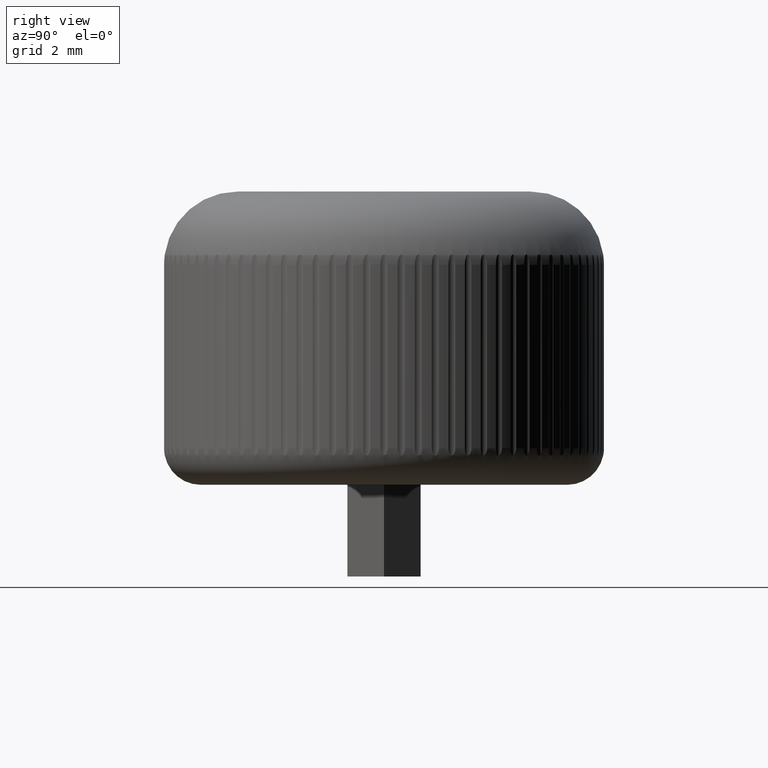
[diagram: clean part render]
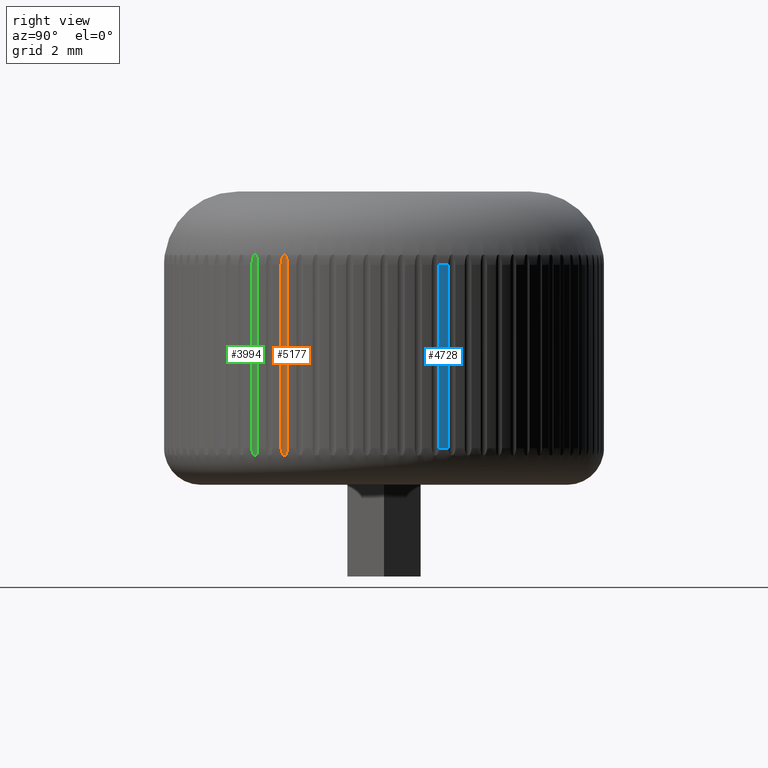
[diagram: same view with three faces highlighted in distinct colors, each labeled with its STEP entity id]
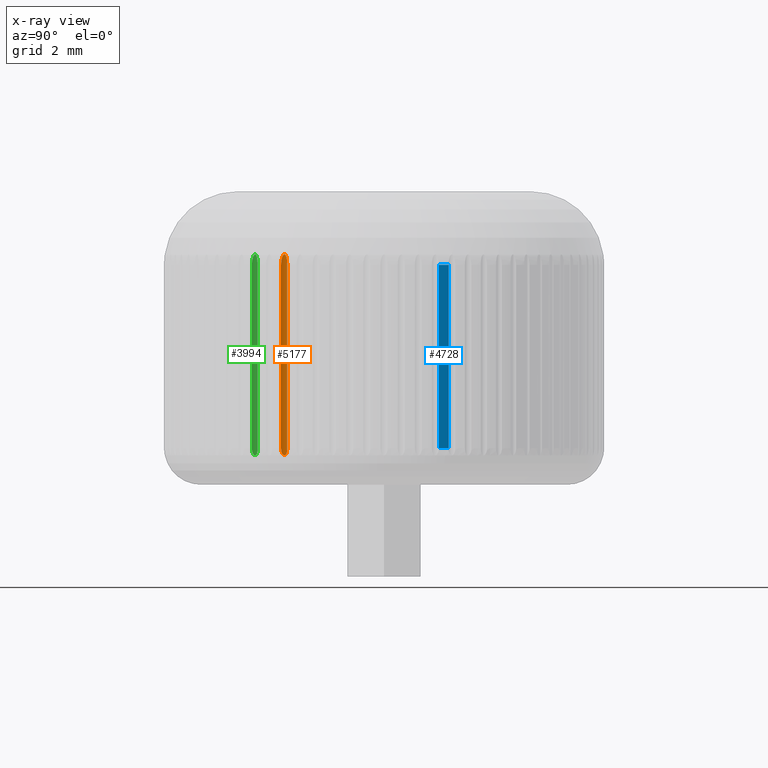
[diagram: x-ray of the same camera — body ghosted, the three highlighted faces saturated]
A machine part, right view with three faces highlighted in distinct colors.
The next image is the same camera in x-ray (body ghosted, the three faces saturated) — at least one of them is partly hidden behind the body in this view.
Their STEP definitions:

[orange] entity #5177 — the highlighted cylindrical surface (edge-blend (fillet) strip) has radius 0.25 mm, axis along (0, 0, 1).
#98 = CARTESIAN_POINT ( 'NONE',  ( 5.301701068032518700, -2.809264278280499300, 1.000000000000000000 ) ) ;
#196 = VECTOR ( 'NONE', #7091, 1000.000000000000000 ) ;
#228 = CARTESIAN_POINT ( 'NONE',  ( 5.305583289753585100, -2.779100178224980200, 6.207378750271915100 ) ) ;
#394 = CARTESIAN_POINT ( 'NONE',  ( 5.351127505341222200, -2.677880165041315300, 6.254449764457787000 ) ) ;
#457 = DIRECTION ( 'NONE',  ( 0.0000000000000000000, 0.0000000000000000000, 1.000000000000000000 ) ) ;
#646 = EDGE_CURVE ( 'NONE', #1848, #1731, #878, .T. ) ;
#711 = ORIENTED_EDGE ( 'NONE', *, *, #5059, .T. ) ;
#858 = CARTESIAN_POINT ( 'NONE',  ( 5.311748808949059400, -2.755174358838212700, 6.254419210208899600 ) ) ;
#878 = LINE ( 'NONE', #7674, #196 ) ;
#908 = DIRECTION ( 'NONE',  ( 0.0000000000000000000, 0.0000000000000000000, 1.000000000000000000 ) ) ;
#1220 = CARTESIAN_POINT ( 'NONE',  ( 5.337061882786374900, -2.697393643284897300, 0.8007359513098428700 ) ) ;
#1341 = EDGE_LOOP ( 'NONE', ( #711, #5024, #4366, #5292 ) ) ;
#1731 = VERTEX_POINT ( 'NONE', #5590 ) ;
#1802 = CARTESIAN_POINT ( 'NONE',  ( 5.301701068032518700, -2.809264278280500200, 0.9599209141271912700 ) ) ;
#1830 = CARTESIAN_POINT ( 'NONE',  ( 5.384566505088154800, -2.641280259510377700, 0.9195644969233555100 ) ) ;
#1848 = VERTEX_POINT ( 'NONE', #2660 ) ;
#2041 = CARTESIAN_POINT ( 'NONE',  ( 5.301823097712117200, -2.804492039714106900, 6.105668859381698800 ) ) ;
#2098 = CARTESIAN_POINT ( 'NONE',  ( 5.301701068032444100, -2.809264278281478100, 6.052781328550055100 ) ) ;
#2217 = VERTEX_POINT ( 'NONE', #98 ) ;
#2226 = DIRECTION ( 'NONE',  ( -0.4539904997395526900, -0.8910065241883650100, 0.0000000000000000000 ) ) ;
#2490 = CARTESIAN_POINT ( 'NONE',  ( 5.306386592544415100, -2.775073155507761700, 0.8460467553037599500 ) ) ;
#2537 = B_SPLINE_CURVE_WITH_KNOTS ( 'NONE', 3,
 ( #7371, #1802, #6178, #3700, #2490, #4884, #4912, #1220, #6107, #6791, #4941, #1830, #6685, #7907 ),
 .UNSPECIFIED., .F., .F.,
 ( 4, 2, 2, 2, 2, 2, 4 ),
 ( 1.969943260167443700E-007, 0.0001186324697943127800, 0.0001778502075284606600, 0.0002370679452626085400, 0.0002962856829967564000, 0.0003555034207309042900, 0.0004739388961991996800 ),
 .UNSPECIFIED. ) ;
#2660 = CARTESIAN_POINT ( 'NONE',  ( 5.389004242672150700, -2.637922150568808200, 6.000000000000000000 ) ) ;
#2777 = CARTESIAN_POINT ( 'NONE',  ( 5.550970645693518600, -2.828360813377403600, -2.500000000000000400 ) ) ;
#2788 = CARTESIAN_POINT ( 'NONE',  ( 5.389004242672150700, -2.637922150568808200, 6.000000000000000000 ) ) ;
#2838 = FACE_OUTER_BOUND ( 'NONE', #1341, .T. ) ;
#3045 = EDGE_CURVE ( 'NONE', #2217, #7131, #5179, .T. ) ;
#3287 = CARTESIAN_POINT ( 'NONE',  ( 5.304399374664596300, -2.786663534587106000, 6.182321155946001000 ) ) ;
#3375 = CARTESIAN_POINT ( 'NONE',  ( 5.301701068032505400, -2.809264278280523700, 6.000000000000000000 ) ) ;
#3428 = CARTESIAN_POINT ( 'NONE',  ( 5.389004242674770000, -2.637922150566596200, 6.052800020881734100 ) ) ;
#3700 = CARTESIAN_POINT ( 'NONE',  ( 5.304885797825226800, -2.783767832845298200, 0.8642221238218028600 ) ) ;
#3858 = CARTESIAN_POINT ( 'NONE',  ( 5.309923820275550100, -2.761788904034026400, 6.243075813865346800 ) ) ;
#3935 = CARTESIAN_POINT ( 'NONE',  ( 5.317723984593050600, -2.737921113085485000, 6.274022481175956400 ) ) ;
#4046 = CARTESIAN_POINT ( 'NONE',  ( 5.372312943583716900, -2.653381120204188800, 6.182319944003847200 ) ) ;
#4073 = CARTESIAN_POINT ( 'NONE',  ( 5.355418563318882400, -2.672493643791808100, 6.243099876852530100 ) ) ;
#4303 = VECTOR ( 'NONE', #457, 1000.000000000000000 ) ;
#4366 = ORIENTED_EDGE ( 'NONE', *, *, #7340, .T. ) ;
#4697 = CARTESIAN_POINT ( 'NONE',  ( 5.340781800614593100, -2.692705530863579000, 6.273889829552829600 ) ) ;
#4884 = CARTESIAN_POINT ( 'NONE',  ( 5.313037084810772200, -2.750588362331211700, 0.8146638843005246100 ) ) ;
#4888 = CARTESIAN_POINT ( 'NONE',  ( 5.301701068032517000, -2.809264278280529900, 2.749999999999998200 ) ) ;
#4912 = CARTESIAN_POINT ( 'NONE',  ( 5.318785220914573000, -2.733496241430201800, 0.8012778110120084600 ) ) ;
#4941 = CARTESIAN_POINT ( 'NONE',  ( 5.369916772829212100, -2.655830053671066200, 0.8631744512752668200 ) ) ;
#5024 = ORIENTED_EDGE ( 'NONE', *, *, #3045, .F. ) ;
#5059 = EDGE_CURVE ( 'NONE', #1848, #7131, #7680, .T. ) ;
#5097 = CARTESIAN_POINT ( 'NONE',  ( 5.301701068032505400, -2.809264278280523700, 6.000000000000000000 ) ) ;
#5177 = ADVANCED_FACE ( 'NONE', ( #2838 ), #5552, .F. ) ;
#5179 = LINE ( 'NONE', #4888, #4303 ) ;
#5292 = ORIENTED_EDGE ( 'NONE', *, *, #646, .F. ) ;
#5325 = CARTESIAN_POINT ( 'NONE',  ( 5.334242812093226100, -2.703044106250320800, 6.282123812613245500 ) ) ;
#5552 = CYLINDRICAL_SURFACE ( 'NONE', #6154, 0.2500000000000002800 ) ;
#5590 = CARTESIAN_POINT ( 'NONE',  ( 5.389004242672138300, -2.637922150568832600, 1.000000000022511800 ) ) ;
#5864 = CARTESIAN_POINT ( 'NONE',  ( 5.322220774027598200, -2.726632119514386300, 6.282145603411372300 ) ) ;
#6107 = CARTESIAN_POINT ( 'NONE',  ( 5.347649927142673400, -2.682332674499716200, 0.8138716278434814400 ) ) ;
#6154 = AXIS2_PLACEMENT_3D ( 'NONE', #2777, #908, #2226 ) ;
#6178 = CARTESIAN_POINT ( 'NONE',  ( 5.301794217035603800, -2.803942532242767300, 0.9207688603883361600 ) ) ;
#6685 = CARTESIAN_POINT ( 'NONE',  ( 5.389004242684260100, -2.637922150558516900, 0.9597457700060760800 ) ) ;
#6791 = CARTESIAN_POINT ( 'NONE',  ( 5.363611362339276500, -2.662348672625297400, 0.8448173818273777600 ) ) ;
#7091 = DIRECTION ( 'NONE',  ( -0.0000000000000000000, -0.0000000000000000000, -1.000000000000000000 ) ) ;
#7131 = VERTEX_POINT ( 'NONE', #3375 ) ;
#7144 = CARTESIAN_POINT ( 'NONE',  ( 5.366838156315795400, -2.658843875408696700, 6.207535447903904200 ) ) ;
#7340 = EDGE_CURVE ( 'NONE', #2217, #1731, #2537, .T. ) ;
#7371 = CARTESIAN_POINT ( 'NONE',  ( 5.301701068032518700, -2.809264278280499300, 1.000000000000000000 ) ) ;
#7674 = CARTESIAN_POINT ( 'NONE',  ( 5.389004242672162300, -2.637922150568814000, 2.749999999999998200 ) ) ;
#7680 = B_SPLINE_CURVE_WITH_KNOTS ( 'NONE', 3,
 ( #2788, #3428, #7753, #4046, #7144, #4073, #394, #4697, #5325, #5864, #3935, #858, #3858, #228, #3287, #2041, #2098, #5097 ),
 .UNSPECIFIED., .F., .F.,
 ( 4, 2, 2, 2, 2, 2, 2, 2, 4 ),
 ( 1.988192864504815600E-007, 0.0001576659044831867300, 0.0002363994470815561400, 0.0002757662183807397000, 0.0003151329896799232200, 0.0003544997609791067500, 0.0003938665322782903300, 0.0004726000748766570600, 0.0006300671600733906300 ),
 .UNSPECIFIED. ) ;
#7753 = CARTESIAN_POINT ( 'NONE',  ( 5.385298182003677600, -2.640748167323022900, 6.105093923889045400 ) ) ;
#7907 = CARTESIAN_POINT ( 'NONE',  ( 5.389004242672138300, -2.637922150568832600, 1.000000000022511800 ) ) ;

[blue] entity #4728 — the highlighted cylindrical surface (partial cylindrical patch) has radius 6 mm, axis along (-0, -0, -1).
#176 = DIRECTION ( 'NONE',  ( -0.0000000000000000000, -0.0000000000000000000, -1.000000000000000000 ) ) ;
#281 = CARTESIAN_POINT ( 'NONE',  ( 5.735318598347047800, 1.762418955712471000, 2.749999999999998200 ) ) ;
#340 = CIRCLE ( 'NONE', #4077, 6.000000000000000900 ) ;
#669 = EDGE_CURVE ( 'NONE', #2805, #4749, #5403, .T. ) ;
#940 = ORIENTED_EDGE ( 'NONE', *, *, #1949, .T. ) ;
#1031 = DIRECTION ( 'NONE',  ( -1.000000000000000000, 0.0000000000000000000, 0.0000000000000000000 ) ) ;
#1514 = DIRECTION ( 'NONE',  ( 0.0000000000000000000, 0.0000000000000000000, 1.000000000000000000 ) ) ;
#1618 = DIRECTION ( 'NONE',  ( 0.0000000000000000000, 0.0000000000000000000, 1.000000000000000000 ) ) ;
#1718 = CARTESIAN_POINT ( 'NONE',  ( 5.811024367105662900, 1.493986547765536300, 2.749999999999998200 ) ) ;
#1949 = EDGE_CURVE ( 'NONE', #6086, #3894, #7863, .T. ) ;
#2036 = VECTOR ( 'NONE', #1514, 1000.000000000000000 ) ;
#2256 = EDGE_LOOP ( 'NONE', ( #7342, #940, #5728, #7906 ) ) ;
#2367 = DIRECTION ( 'NONE',  ( -0.0000000000000000000, -0.0000000000000000000, -1.000000000000000000 ) ) ;
#2536 = CARTESIAN_POINT ( 'NONE',  ( 0.0000000000000000000, 0.0000000000000000000, 6.000000000000000000 ) ) ;
#2675 = CARTESIAN_POINT ( 'NONE',  ( 5.811024367105658500, 1.493986547765506800, 1.000000000022511800 ) ) ;
#2805 = VERTEX_POINT ( 'NONE', #7867 ) ;
#2839 = CARTESIAN_POINT ( 'NONE',  ( 0.0000000000000000000, 0.0000000000000000000, 1.000000000000000000 ) ) ;
#2843 = AXIS2_PLACEMENT_3D ( 'NONE', #3544, #2367, #1031 ) ;
#3041 = AXIS2_PLACEMENT_3D ( 'NONE', #2536, #176, #4472 ) ;
#3406 = DIRECTION ( 'NONE',  ( 1.000000000000000000, 0.0000000000000000000, 0.0000000000000000000 ) ) ;
#3544 = CARTESIAN_POINT ( 'NONE',  ( 0.0000000000000000000, 0.0000000000000000000, 8.000000000000000000 ) ) ;
#3894 = VERTEX_POINT ( 'NONE', #2675 ) ;
#4077 = AXIS2_PLACEMENT_3D ( 'NONE', #2839, #1618, #3406 ) ;
#4351 = EDGE_CURVE ( 'NONE', #4749, #6086, #7934, .T. ) ;
#4472 = DIRECTION ( 'NONE',  ( 1.000000000000000000, 2.842170943040400700E-014, 0.0000000000000000000 ) ) ;
#4670 = CYLINDRICAL_SURFACE ( 'NONE', #2843, 6.000000000000000900 ) ;
#4728 = ADVANCED_FACE ( 'NONE', ( #7644 ), #4670, .T. ) ;
#4742 = DIRECTION ( 'NONE',  ( -0.0000000000000000000, -0.0000000000000000000, -1.000000000000000000 ) ) ;
#4749 = VERTEX_POINT ( 'NONE', #5551 ) ;
#5033 = EDGE_CURVE ( 'NONE', #3894, #2805, #340, .T. ) ;
#5403 = LINE ( 'NONE', #281, #2036 ) ;
#5551 = CARTESIAN_POINT ( 'NONE',  ( 5.735318598347034500, 1.762418955712467900, 6.000000000000000000 ) ) ;
#5728 = ORIENTED_EDGE ( 'NONE', *, *, #5033, .T. ) ;
#6086 = VERTEX_POINT ( 'NONE', #6377 ) ;
#6377 = CARTESIAN_POINT ( 'NONE',  ( 5.811024367105651400, 1.493986547765533400, 6.000000000000000000 ) ) ;
#6919 = VECTOR ( 'NONE', #4742, 1000.000000000000000 ) ;
#7342 = ORIENTED_EDGE ( 'NONE', *, *, #4351, .T. ) ;
#7644 = FACE_OUTER_BOUND ( 'NONE', #2256, .T. ) ;
#7863 = LINE ( 'NONE', #1718, #6919 ) ;
#7867 = CARTESIAN_POINT ( 'NONE',  ( 5.735318598347025600, 1.762418955712496100, 1.000000000000000000 ) ) ;
#7906 = ORIENTED_EDGE ( 'NONE', *, *, #669, .T. ) ;
#7934 = CIRCLE ( 'NONE', #3041, 6.000000000000000900 ) ;

[green] entity #3994 — the highlighted cylindrical surface (edge-blend (fillet) strip) has radius 0.25 mm, axis along (0, 0, 1).
#26 = B_SPLINE_CURVE_WITH_KNOTS ( 'NONE', 3,
 ( #5125, #7002, #253, #226, #4608, #1533, #1483, #5832, #4556, #882, #1454, #5180, #1558, #6410 ),
 .UNSPECIFIED., .F., .F.,
 ( 4, 2, 2, 2, 2, 2, 4 ),
 ( 1.969943260167079800E-007, 0.0001186324697943132900, 0.0001778502075284612000, 0.0002370679452626091400, 0.0002962856829967570500, 0.0003555034207309049900, 0.0004739388961992009200 ),
 .UNSPECIFIED. ) ;
#226 = CARTESIAN_POINT ( 'NONE',  ( 4.804096618973352900, -3.579362003307403000, 0.8642221238218021900 ) ) ;
#253 = CARTESIAN_POINT ( 'NONE',  ( 4.797887082365845000, -3.598804688890344200, 0.9207688603883356100 ) ) ;
#490 = ORIENTED_EDGE ( 'NONE', *, *, #7565, .T. ) ;
#547 = FACE_OUTER_BOUND ( 'NONE', #5759, .T. ) ;
#696 = CARTESIAN_POINT ( 'NONE',  ( 4.823948753437789200, -3.536088067625216400, 6.274022481175956400 ) ) ;
#779 = CARTESIAN_POINT ( 'NONE',  ( 4.796962575686841000, -3.604046343689907100, 6.052781328550057800 ) ) ;
#882 = CARTESIAN_POINT ( 'NONE',  ( 4.881093315713395800, -3.468624416702193800, 0.8448173818273774200 ) ) ;
#1170 = DIRECTION ( 'NONE',  ( 0.0000000000000000000, 0.0000000000000000000, 1.000000000000000000 ) ) ;
#1224 = CARTESIAN_POINT ( 'NONE',  ( 4.891090600318988500, -3.461128496939170700, 6.182319944003847200 ) ) ;
#1301 = CARTESIAN_POINT ( 'NONE',  ( 4.866333495003385900, -3.482011785182407500, 6.254449764457788800 ) ) ;
#1377 = CARTESIAN_POINT ( 'NONE',  ( 4.797829645565991000, -3.599351948946034200, 6.105668859381699700 ) ) ;
#1454 = CARTESIAN_POINT ( 'NONE',  ( 4.888340832805879700, -3.463172436281171800, 0.8631744512752674800 ) ) ;
#1483 = CARTESIAN_POINT ( 'NONE',  ( 4.825689126609441700, -3.531883687418899200, 0.8012778110120079000 ) ) ;
#1533 = CARTESIAN_POINT ( 'NONE',  ( 4.817337962810011500, -3.547866169352493300, 0.8146638843005240500 ) ) ;
#1558 = CARTESIAN_POINT ( 'NONE',  ( 4.909994717476579700, -3.448470947308146500, 0.9597457700060758600 ) ) ;
#1753 = CARTESIAN_POINT ( 'NONE',  ( 4.909994717465943700, -3.448470947314639100, 6.052800020881733200 ) ) ;
#1891 = VERTEX_POINT ( 'NONE', #7872 ) ;
#1963 = CARTESIAN_POINT ( 'NONE',  ( 4.812510876977942300, -3.558441791928620600, 6.243075813865350400 ) ) ;
#2444 = CARTESIAN_POINT ( 'NONE',  ( 4.909994717462990500, -3.448470947316438100, 1.000000000022511800 ) ) ;
#2493 = CARTESIAN_POINT ( 'NONE',  ( 4.796962575687050600, -3.604046343688973100, 6.000000000000000000 ) ) ;
#2572 = CARTESIAN_POINT ( 'NONE',  ( 4.845720172666482000, -3.504224568562348500, 6.282123812613252600 ) ) ;
#2649 = CYLINDRICAL_SURFACE ( 'NONE', #3142, 0.2500000000000005600 ) ;
#2755 = CARTESIAN_POINT ( 'NONE',  ( 5.040175874955904700, -3.661902121782131900, -2.500000000000000400 ) ) ;
#2790 = EDGE_CURVE ( 'NONE', #4451, #6795, #3335, .T. ) ;
#2947 = VECTOR ( 'NONE', #3661, 1000.000000000000000 ) ;
#2974 = CARTESIAN_POINT ( 'NONE',  ( 4.909994717463017200, -3.448470947316423000, 2.749999999999998200 ) ) ;
#3142 = AXIS2_PLACEMENT_3D ( 'NONE', #2755, #4668, #3451 ) ;
#3155 = CARTESIAN_POINT ( 'NONE',  ( 4.805515705672172000, -3.574860927037675700, 6.207378750271914200 ) ) ;
#3210 = CARTESIAN_POINT ( 'NONE',  ( 4.803163196936108800, -3.582145960808713200, 6.182321155946002700 ) ) ;
#3335 = LINE ( 'NONE', #2974, #2947 ) ;
#3451 = DIRECTION ( 'NONE',  ( -0.5877852522924775800, -0.8090169943749443400, 0.0000000000000000000 ) ) ;
#3661 = DIRECTION ( 'NONE',  ( -0.0000000000000000000, -0.0000000000000000000, -1.000000000000000000 ) ) ;
#3764 = CARTESIAN_POINT ( 'NONE',  ( 4.796962575687050600, -3.604046343688973100, 6.000000000000000000 ) ) ;
#3994 = ADVANCED_FACE ( 'NONE', ( #547 ), #2649, .F. ) ;
#4261 = CARTESIAN_POINT ( 'NONE',  ( 4.909994717463006500, -3.448470947316415500, 6.000000000000000000 ) ) ;
#4325 = VECTOR ( 'NONE', #1170, 1000.000000000000000 ) ;
#4341 = CARTESIAN_POINT ( 'NONE',  ( 4.853795964898229600, -3.495036201365741700, 6.273889829552834900 ) ) ;
#4451 = VERTEX_POINT ( 'NONE', #6349 ) ;
#4556 = CARTESIAN_POINT ( 'NONE',  ( 4.862202205627962600, -3.485865463775734700, 0.8138716278434809900 ) ) ;
#4608 = CARTESIAN_POINT ( 'NONE',  ( 4.806939083617120200, -3.571009147894911500, 0.8460467553037596100 ) ) ;
#4668 = DIRECTION ( 'NONE',  ( 0.0000000000000000000, 0.0000000000000000000, 1.000000000000000000 ) ) ;
#4921 = CARTESIAN_POINT ( 'NONE',  ( 4.796962575687060400, -3.604046343688981100, 2.749999999999998200 ) ) ;
#5125 = CARTESIAN_POINT ( 'NONE',  ( 4.796962575687069300, -3.604046343688950900, 1.000000000000000000 ) ) ;
#5180 = CARTESIAN_POINT ( 'NONE',  ( 4.905086291816851400, -3.451093497259510200, 0.9195644969233562900 ) ) ;
#5620 = ORIENTED_EDGE ( 'NONE', *, *, #6808, .F. ) ;
#5628 = CARTESIAN_POINT ( 'NONE',  ( 4.871414360506834700, -3.477362850307095200, 6.243099876852529200 ) ) ;
#5759 = EDGE_LOOP ( 'NONE', ( #6864, #5620, #490, #6466 ) ) ;
#5832 = CARTESIAN_POINT ( 'NONE',  ( 4.849388463072640900, -3.499084671988225400, 0.8007359513098426500 ) ) ;
#6157 = CARTESIAN_POINT ( 'NONE',  ( 4.905892198132076700, -3.450682415496801000, 6.105093923889045400 ) ) ;
#6260 = CARTESIAN_POINT ( 'NONE',  ( 4.884828653579163800, -3.465667551144721700, 6.207535447903904200 ) ) ;
#6349 = CARTESIAN_POINT ( 'NONE',  ( 4.909994717463006500, -3.448470947316415500, 6.000000000000000000 ) ) ;
#6410 = CARTESIAN_POINT ( 'NONE',  ( 4.909994717462990500, -3.448470947316438100, 1.000000000022511800 ) ) ;
#6417 = EDGE_CURVE ( 'NONE', #4451, #7897, #7901, .T. ) ;
#6466 = ORIENTED_EDGE ( 'NONE', *, *, #2790, .F. ) ;
#6795 = VERTEX_POINT ( 'NONE', #2444 ) ;
#6808 = EDGE_CURVE ( 'NONE', #1891, #7897, #7590, .T. ) ;
#6864 = ORIENTED_EDGE ( 'NONE', *, *, #6417, .T. ) ;
#7002 = CARTESIAN_POINT ( 'NONE',  ( 4.796962575687065700, -3.604046343688955400, 0.9599209141271909400 ) ) ;
#7402 = CARTESIAN_POINT ( 'NONE',  ( 4.830156167602542200, -3.525641513147579800, 6.282145603411378500 ) ) ;
#7509 = CARTESIAN_POINT ( 'NONE',  ( 4.815348139851678900, -3.552194173887217600, 6.254419210208899600 ) ) ;
#7565 = EDGE_CURVE ( 'NONE', #1891, #6795, #26, .T. ) ;
#7590 = LINE ( 'NONE', #4921, #4325 ) ;
#7872 = CARTESIAN_POINT ( 'NONE',  ( 4.796962575687069300, -3.604046343688950900, 1.000000000000000000 ) ) ;
#7897 = VERTEX_POINT ( 'NONE', #3764 ) ;
#7901 = B_SPLINE_CURVE_WITH_KNOTS ( 'NONE', 3,
 ( #4261, #1753, #6157, #1224, #6260, #5628, #1301, #4341, #2572, #7402, #696, #7509, #1963, #3155, #3210, #1377, #779, #2493 ),
 .UNSPECIFIED., .F., .F.,
 ( 4, 2, 2, 2, 2, 2, 2, 2, 4 ),
 ( 1.988192864505143100E-007, 0.0001576659044831907900, 0.0002363994470815596600, 0.0002757662183807433800, 0.0003151329896799271800, 0.0003544997609791109200, 0.0003938665322782946100, 0.0004726000748766615600, 0.0006300671600733929100 ),
 .UNSPECIFIED. ) ;